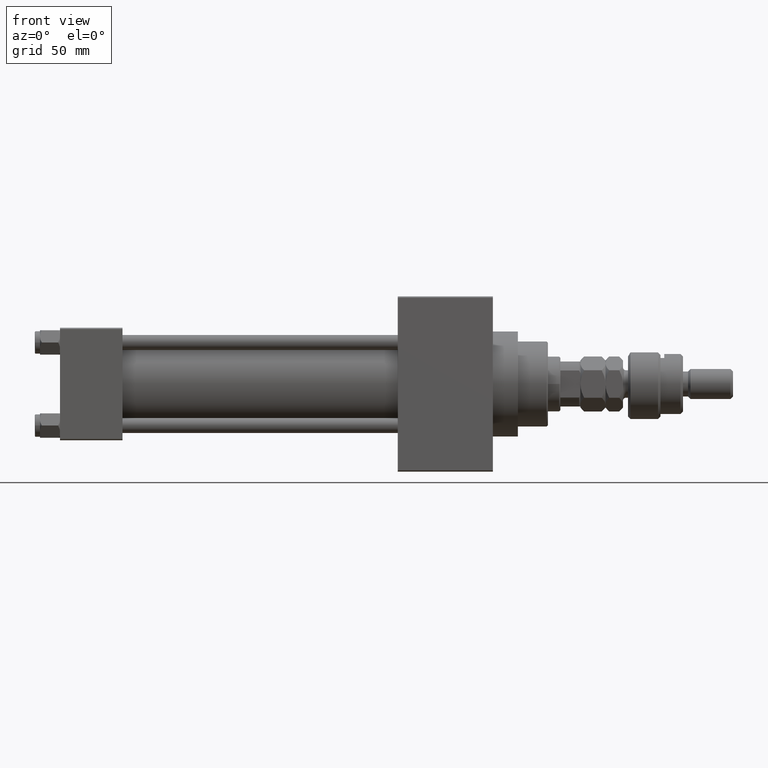
[diagram: clean part render]
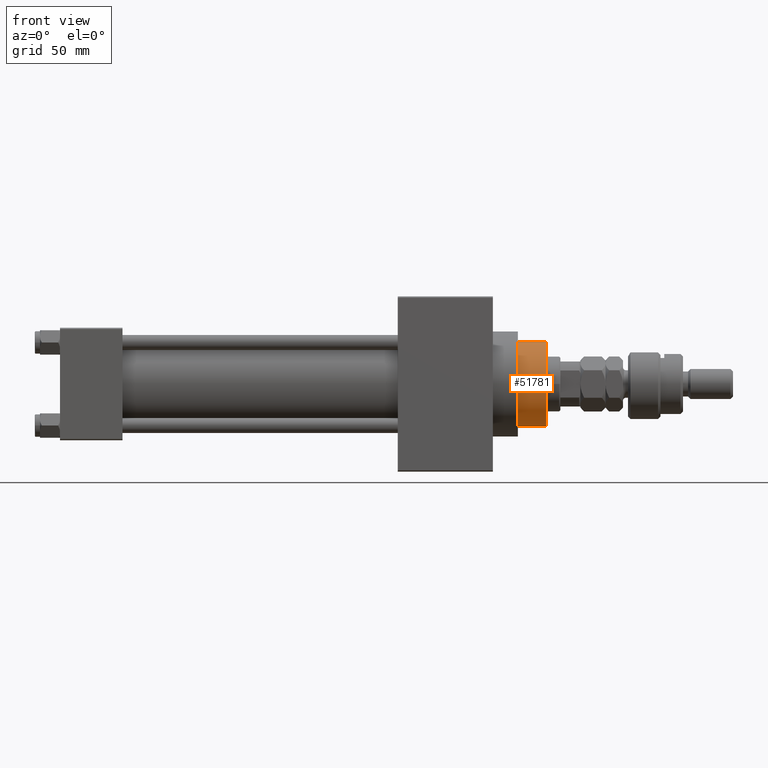
[diagram: same view with one face highlighted and labeled with its STEP entity id]
A machine part, front view. The second image highlights one B-rep face of the part: STEP entity #51781.
In plain terms, the highlighted cylindrical surface (partial cylindrical patch) has radius 17 mm, axis along (-1, 0, 0).
Its self-contained STEP definition (entity closure, byte-faithful):
#1810 = CARTESIAN_POINT ( 'NONE',  ( 17.00000000000000000, 2.081899558550500280E-15, 54.76000000000001222 ) ) ;
#1929 = ORIENTED_EDGE ( 'NONE', *, *, #37370, .T. ) ;
#1932 = CIRCLE ( 'NONE', #12852, 17.00000000000000000 ) ;
#3709 = AXIS2_PLACEMENT_3D ( 'NONE', #8857, #36206, #16500 ) ;
#4549 = ORIENTED_EDGE ( 'NONE', *, *, #9465, .T. ) ;
#5090 = CARTESIAN_POINT ( 'NONE',  ( 0.000000000000000000, 0.000000000000000000, 55.26000000000000512 ) ) ;
#8857 = CARTESIAN_POINT ( 'NONE',  ( 0.000000000000000000, 0.000000000000000000, 54.76000000000001222 ) ) ;
#9465 = EDGE_CURVE ( 'NONE', #18854, #22489, #19414, .T. ) ;
#11488 = CARTESIAN_POINT ( 'NONE',  ( -17.00000000000000000, 0.000000000000000000, 43.25999999999999801 ) ) ;
#12747 = EDGE_LOOP ( 'NONE', ( #1929, #4549, #41177, #24397 ) ) ;
#12852 = AXIS2_PLACEMENT_3D ( 'NONE', #43095, #35232, #43609 ) ;
#13233 = AXIS2_PLACEMENT_3D ( 'NONE', #5090, #21421, #17477 ) ;
#13719 = CARTESIAN_POINT ( 'NONE',  ( -17.00000000000000000, 0.000000000000000000, 55.26000000000000512 ) ) ;
#16169 = VECTOR ( 'NONE', #32558, 1000.000000000000000 ) ;
#16500 = DIRECTION ( 'NONE',  ( 1.000000000000000000, 0.000000000000000000, 0.000000000000000000 ) ) ;
#17477 = DIRECTION ( 'NONE',  ( -1.000000000000000000, 0.000000000000000000, 0.000000000000000000 ) ) ;
#18133 = VECTOR ( 'NONE', #42097, 1000.000000000000000 ) ;
#18854 = VERTEX_POINT ( 'NONE', #1810 ) ;
#19414 = LINE ( 'NONE', #35450, #16169 ) ;
#21421 = DIRECTION ( 'NONE',  ( -0.000000000000000000, -0.000000000000000000, -1.000000000000000000 ) ) ;
#22489 = VERTEX_POINT ( 'NONE', #42104 ) ;
#24397 = ORIENTED_EDGE ( 'NONE', *, *, #43997, .F. ) ;
#25089 = FACE_OUTER_BOUND ( 'NONE', #12747, .T. ) ;
#26897 = CARTESIAN_POINT ( 'NONE',  ( -17.00000000000000000, 0.000000000000000000, 54.76000000000001222 ) ) ;
#31294 = VERTEX_POINT ( 'NONE', #26897 ) ;
#32558 = DIRECTION ( 'NONE',  ( -0.000000000000000000, -0.000000000000000000, -1.000000000000000000 ) ) ;
#35230 = EDGE_CURVE ( 'NONE', #22489, #43533, #1932, .T. ) ;
#35232 = DIRECTION ( 'NONE',  ( 0.000000000000000000, 0.000000000000000000, 1.000000000000000000 ) ) ;
#35450 = CARTESIAN_POINT ( 'NONE',  ( 17.00000000000000000, 2.081899558550500280E-15, 55.26000000000000512 ) ) ;
#36206 = DIRECTION ( 'NONE',  ( 0.000000000000000000, 0.000000000000000000, -1.000000000000000000 ) ) ;
#37370 = EDGE_CURVE ( 'NONE', #31294, #18854, #40648, .T. ) ;
#38660 = LINE ( 'NONE', #13719, #18133 ) ;
#40648 = CIRCLE ( 'NONE', #3709, 17.00000000000000000 ) ;
#41109 = CYLINDRICAL_SURFACE ( 'NONE', #13233, 17.00000000000000000 ) ;
#41177 = ORIENTED_EDGE ( 'NONE', *, *, #35230, .T. ) ;
#42097 = DIRECTION ( 'NONE',  ( -0.000000000000000000, -0.000000000000000000, -1.000000000000000000 ) ) ;
#42104 = CARTESIAN_POINT ( 'NONE',  ( 17.00000000000000000, 2.081899558550500280E-15, 43.25999999999999801 ) ) ;
#43095 = CARTESIAN_POINT ( 'NONE',  ( 0.000000000000000000, 0.000000000000000000, 43.25999999999999801 ) ) ;
#43533 = VERTEX_POINT ( 'NONE', #11488 ) ;
#43609 = DIRECTION ( 'NONE',  ( 1.000000000000000000, 0.000000000000000000, 0.000000000000000000 ) ) ;
#43997 = EDGE_CURVE ( 'NONE', #31294, #43533, #38660, .T. ) ;
#51781 = ADVANCED_FACE ( 'NONE', ( #25089 ), #41109, .T. ) ;